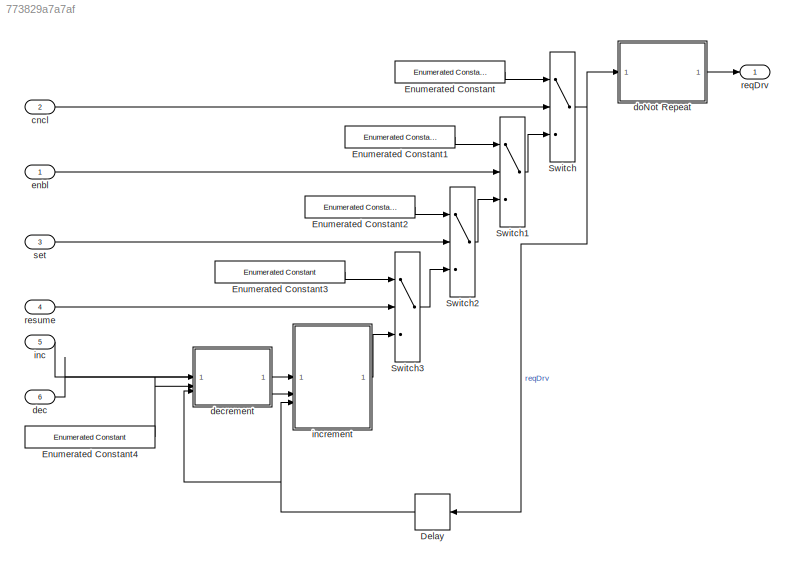
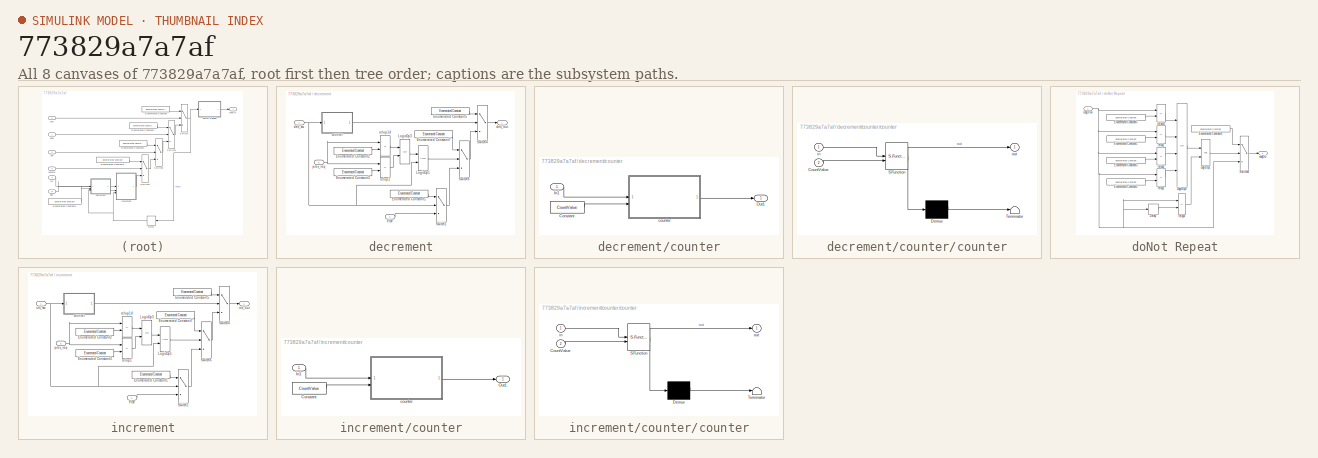
[diagram: thumbnail index - all 8 canvases of the model, root first then tree order]
MODEL slx_773829a7a7af
KIND model
CONFIG AbsTol = auto
CONFIG EnableMultiTasking = off
CONFIG FixedStep = 0.01
CONFIG MaxStep = auto
CONFIG MinStep = auto
CONFIG RelTol = 1e-3
CONFIG SampleTimeConstraint = Unconstrained
CONFIG SolverName = FixedStepDiscrete
CONFIG StartTime = 0.0
CONFIG StopTime = 10.0
BLOCK [Delay] Delay
  AttributesFormatString = IC: %<InitialCondition>
  DelayLength = 1
  InitialCondition = reqMode.NoRequest
  InputPortMap = u0
BLOCK [Reference] Enumerated Constant  REF=simulink/Sources/Enumerated
Constant
  SourceBlock = simulink/Sources/Enumerated\nConstant
  SourceType = Enumerated Constant
BLOCK [Reference] Enumerated Constant1  REF=simulink/Sources/Enumerated
Constant
  SourceBlock = simulink/Sources/Enumerated\nConstant
  SourceType = Enumerated Constant
BLOCK [Reference] Enumerated Constant2  REF=simulink/Sources/Enumerated
Constant
  SourceBlock = simulink/Sources/Enumerated\nConstant
  SourceType = Enumerated Constant
BLOCK [Reference] Enumerated Constant3  REF=simulink/Sources/Enumerated
Constant
  SourceBlock = simulink/Sources/Enumerated\nConstant
  SourceType = Enumerated Constant
BLOCK [Reference] Enumerated Constant4  REF=simulink/Sources/Enumerated
Constant
  NameLocation = top
  SourceBlock = simulink/Sources/Enumerated\nConstant
  SourceType = Enumerated Constant
BLOCK [Switch] Switch
  Criteria = u2 ~= 0
  InputSameDT = off
  SaturateOnIntegerOverflow = off
BLOCK [Switch] Switch1
  Criteria = u2 ~= 0
  InputSameDT = off
  SaturateOnIntegerOverflow = off
BLOCK [Switch] Switch2
  Criteria = u2 ~= 0
  InputSameDT = off
  SaturateOnIntegerOverflow = off
BLOCK [Switch] Switch3
  Criteria = u2 ~= 0
  InputSameDT = off
  SaturateOnIntegerOverflow = off
BLOCK [Inport] cncl
  OutDataTypeStr = boolean
  Port = 2
  PortDimensions = 1
  SampleTime = [0.01,0]
  SamplingMode = Sample based
  SignalType = real
BLOCK [Inport] dec
  OutDataTypeStr = boolean
  Port = 6
  PortDimensions = 1
  SampleTime = [0.01,0]
  SamplingMode = Sample based
  SignalType = real
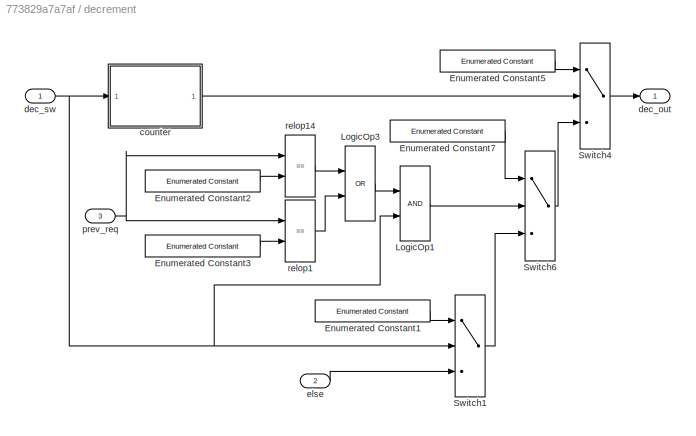
BLOCK [SubSystem] decrement
BLOCK [Reference] decrement/Enumerated Constant1  REF=simulink/Sources/Enumerated
Constant
  SourceBlock = simulink/Sources/Enumerated\nConstant
  SourceType = Enumerated Constant
BLOCK [Reference] decrement/Enumerated Constant2  REF=simulink/Sources/Enumerated
Constant
  SourceBlock = simulink/Sources/Enumerated\nConstant
  SourceType = Enumerated Constant
BLOCK [Reference] decrement/Enumerated Constant3  REF=simulink/Sources/Enumerated
Constant
  SourceBlock = simulink/Sources/Enumerated\nConstant
  SourceType = Enumerated Constant
BLOCK [Reference] decrement/Enumerated Constant5  REF=simulink/Sources/Enumerated
Constant
  SourceBlock = simulink/Sources/Enumerated\nConstant
  SourceType = Enumerated Constant
BLOCK [Reference] decrement/Enumerated Constant7  REF=simulink/Sources/Enumerated
Constant
  SourceBlock = simulink/Sources/Enumerated\nConstant
  SourceType = Enumerated Constant
BLOCK [Logic] decrement/LogicOp1
  AllPortsSameDT = off
  OutDataTypeStr = boolean
BLOCK [Logic] decrement/LogicOp3
  AllPortsSameDT = off
  Operator = OR
  OutDataTypeStr = boolean
BLOCK [Switch] decrement/Switch1
  Criteria = u2 ~= 0
  InputSameDT = off
  SaturateOnIntegerOverflow = off
BLOCK [Switch] decrement/Switch4
  Criteria = u2 ~= 0
  InputSameDT = off
  SaturateOnIntegerOverflow = off
BLOCK [Switch] decrement/Switch6
  Criteria = u2 ~= 0
  InputSameDT = off
  SaturateOnIntegerOverflow = off
BLOCK [SubSystem] decrement/counter
  DisableCoverage = on
BLOCK [Constant] decrement/counter/Constant
  OutDataTypeStr = OutDataTypeStr
  Value = CountValue
BLOCK [Inport] decrement/counter/In1
BLOCK [Outport] decrement/counter/Out1
  VectorParamsAs1DForOutWhenUnconnected = off
BLOCK [SubSystem] decrement/counter/counter
  ErrorFcn = Stateflow.Translate.translate
  PermitHierarchicalResolution = ExplicitOnly
  SFBlockType = MATLAB Function
  TreatAsAtomicUnit = on
BLOCK [Demux] decrement/counter/counter/ Demux 
  Outputs = 1
BLOCK [S-Function] decrement/counter/counter/ SFunction 
  EnableBusSupport = off
  FunctionName = sf_sfun
  PortCounts = [2 2]
  SFcnIsStateOwnerBlock = off
  SFunctionDeploymentMode = off
  Tag = Stateflow S-Function 1
BLOCK [Terminator] decrement/counter/counter/ Terminator 
BLOCK [Inport] decrement/counter/counter/CountValue
  Port = 2
BLOCK [Inport] decrement/counter/counter/in
BLOCK [Outport] decrement/counter/counter/out
  VectorParamsAs1DForOutWhenUnconnected = off
BLOCK [Outport] decrement/dec_out
  VectorParamsAs1DForOutWhenUnconnected = off
BLOCK [Inport] decrement/dec_sw
BLOCK [Inport] decrement/else
  Port = 2
BLOCK [Inport] decrement/prev_req
  Port = 3
BLOCK [RelationalOperator] decrement/relop1
  InputSameDT = off
  Operator = ==
  OutDataTypeStr = boolean
BLOCK [RelationalOperator] decrement/relop14
  InputSameDT = off
  Operator = ==
  OutDataTypeStr = boolean
BLOCK [SubSystem] doNot Repeat
BLOCK [Delay] doNot Repeat/Delay
  AttributesFormatString = Init = %<InitialCondition>
  DelayLength = 1
  InitialCondition = reqMode.NoRequest
  InputPortMap = u0
BLOCK [Reference] doNot Repeat/Enumerated Constant1  REF=simulink/Sources/Enumerated
Constant
  SourceBlock = simulink/Sources/Enumerated\nConstant
  SourceType = Enumerated Constant
BLOCK [Reference] doNot Repeat/Enumerated Constant2  REF=simulink/Sources/Enumerated
Constant
  SourceBlock = simulink/Sources/Enumerated\nConstant
  SourceType = Enumerated Constant
BLOCK [Reference] doNot Repeat/Enumerated Constant3  REF=simulink/Sources/Enumerated
Constant
  SourceBlock = simulink/Sources/Enumerated\nConstant
  SourceType = Enumerated Constant
BLOCK [Reference] doNot Repeat/Enumerated Constant4  REF=simulink/Sources/Enumerated
Constant
  NameLocation = top
  SourceBlock = simulink/Sources/Enumerated\nConstant
  SourceType = Enumerated Constant
BLOCK [Reference] doNot Repeat/Enumerated Constant5  REF=simulink/Sources/Enumerated
Constant
  SourceBlock = simulink/Sources/Enumerated\nConstant
  SourceType = Enumerated Constant
BLOCK [Logic] doNot Repeat/LogicOp1
  AllPortsSameDT = off
  OutDataTypeStr = boolean
BLOCK [Logic] doNot Repeat/LogicOp3
  AllPortsSameDT = off
  Inputs = 4
  Operator = OR
  OutDataTypeStr = boolean
BLOCK [Switch] doNot Repeat/Switch4
  Criteria = u2 ~= 0
  InputSameDT = off
  SaturateOnIntegerOverflow = off
BLOCK [RelationalOperator] doNot Repeat/relop1
  InputSameDT = off
  Operator = ==
  OutDataTypeStr = boolean
BLOCK [RelationalOperator] doNot Repeat/relop14
  InputSameDT = off
  Operator = ==
  OutDataTypeStr = boolean
BLOCK [RelationalOperator] doNot Repeat/relop2
  InputSameDT = off
  Operator = ==
  OutDataTypeStr = boolean
BLOCK [RelationalOperator] doNot Repeat/relop3
  InputSameDT = off
  Operator = ==
  OutDataTypeStr = boolean
BLOCK [RelationalOperator] doNot Repeat/relop4
  InputSameDT = off
  Operator = ==
  OutDataTypeStr = boolean
BLOCK [Inport] doNot Repeat/reqDrInv
BLOCK [Outport] doNot Repeat/reqDrv
  VectorParamsAs1DForOutWhenUnconnected = off
BLOCK [Inport] enbl
  OutDataTypeStr = boolean
  PortDimensions = 1
  SampleTime = [0.01,0]
  SamplingMode = Sample based
  SignalType = real
BLOCK [Inport] inc
  OutDataTypeStr = boolean
  Port = 5
  PortDimensions = 1
  SampleTime = [0.01,0]
  SamplingMode = Sample based
  SignalType = real
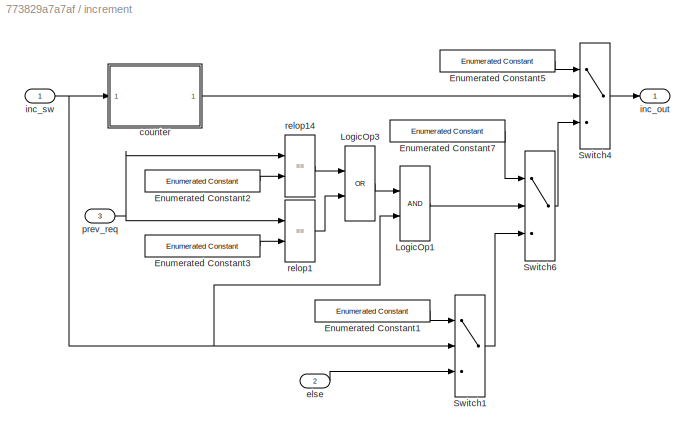
BLOCK [SubSystem] increment
BLOCK [Reference] increment/Enumerated Constant1  REF=simulink/Sources/Enumerated
Constant
  SourceBlock = simulink/Sources/Enumerated\nConstant
  SourceType = Enumerated Constant
BLOCK [Reference] increment/Enumerated Constant2  REF=simulink/Sources/Enumerated
Constant
  SourceBlock = simulink/Sources/Enumerated\nConstant
  SourceType = Enumerated Constant
BLOCK [Reference] increment/Enumerated Constant3  REF=simulink/Sources/Enumerated
Constant
  SourceBlock = simulink/Sources/Enumerated\nConstant
  SourceType = Enumerated Constant
BLOCK [Reference] increment/Enumerated Constant5  REF=simulink/Sources/Enumerated
Constant
  SourceBlock = simulink/Sources/Enumerated\nConstant
  SourceType = Enumerated Constant
BLOCK [Reference] increment/Enumerated Constant7  REF=simulink/Sources/Enumerated
Constant
  SourceBlock = simulink/Sources/Enumerated\nConstant
  SourceType = Enumerated Constant
BLOCK [Logic] increment/LogicOp1
  AllPortsSameDT = off
  OutDataTypeStr = boolean
BLOCK [Logic] increment/LogicOp3
  AllPortsSameDT = off
  Operator = OR
  OutDataTypeStr = boolean
BLOCK [Switch] increment/Switch1
  Criteria = u2 ~= 0
  InputSameDT = off
  SaturateOnIntegerOverflow = off
BLOCK [Switch] increment/Switch4
  Criteria = u2 ~= 0
  InputSameDT = off
  SaturateOnIntegerOverflow = off
BLOCK [Switch] increment/Switch6
  Criteria = u2 ~= 0
  InputSameDT = off
  SaturateOnIntegerOverflow = off
BLOCK [SubSystem] increment/counter
  DisableCoverage = on
BLOCK [Constant] increment/counter/Constant
  OutDataTypeStr = OutDataTypeStr
  Value = CountValue
BLOCK [Inport] increment/counter/In1
BLOCK [Outport] increment/counter/Out1
  VectorParamsAs1DForOutWhenUnconnected = off
BLOCK [SubSystem] increment/counter/counter
  ErrorFcn = Stateflow.Translate.translate
  PermitHierarchicalResolution = ExplicitOnly
  SFBlockType = MATLAB Function
  TreatAsAtomicUnit = on
BLOCK [Demux] increment/counter/counter/ Demux 
  Outputs = 1
BLOCK [S-Function] increment/counter/counter/ SFunction 
  EnableBusSupport = off
  FunctionName = sf_sfun
  PortCounts = [2 2]
  SFcnIsStateOwnerBlock = off
  SFunctionDeploymentMode = off
  Tag = Stateflow S-Function 2
BLOCK [Terminator] increment/counter/counter/ Terminator 
BLOCK [Inport] increment/counter/counter/CountValue
  Port = 2
BLOCK [Inport] increment/counter/counter/in
BLOCK [Outport] increment/counter/counter/out
  VectorParamsAs1DForOutWhenUnconnected = off
BLOCK [Inport] increment/else
  Port = 2
BLOCK [Outport] increment/inc_out
  VectorParamsAs1DForOutWhenUnconnected = off
BLOCK [Inport] increment/inc_sw
BLOCK [Inport] increment/prev_req
  Port = 3
BLOCK [RelationalOperator] increment/relop1
  InputSameDT = off
  Operator = ==
  OutDataTypeStr = boolean
BLOCK [RelationalOperator] increment/relop14
  InputSameDT = off
  Operator = ==
  OutDataTypeStr = boolean
BLOCK [Outport] reqDrv
  OutDataTypeStr = Enum: reqMode
  PortDimensions = 1
  SampleTime = [0.01,0]
  SamplingMode = Sample based
  SignalType = real
  VectorParamsAs1DForOutWhenUnconnected = off
BLOCK [Inport] resume
  OutDataTypeStr = boolean
  Port = 4
  PortDimensions = 1
  SampleTime = [0.01,0]
  SamplingMode = Sample based
  SignalType = real
BLOCK [Inport] set
  OutDataTypeStr = boolean
  Port = 3
  PortDimensions = 1
  SampleTime = [0.01,0]
  SamplingMode = Sample based
  SignalType = real
NET Delay:1 -> decrement:3, increment:3
LINE Enumerated Constant1:1 -> Switch1:1
LINE Enumerated Constant2:1 -> Switch2:1
LINE Enumerated Constant3:1 -> Switch3:1
LINE Enumerated Constant4:1 -> decrement:2
LINE Enumerated Constant:1 -> Switch:1
LINE Switch1:1 -> Switch:3
LINE Switch2:1 -> Switch1:3
LINE Switch3:1 -> Switch2:3
NET Switch:1 -> Delay:1, doNot Repeat:1
LINE cncl:1 -> Switch:2
LINE dec:1 -> decrement:1
LINE decrement/Enumerated Constant1:1 -> decrement/Switch1:1
LINE decrement/Enumerated Constant2:1 -> decrement/relop14:2
LINE decrement/Enumerated Constant3:1 -> decrement/relop1:2
LINE decrement/Enumerated Constant5:1 -> decrement/Switch4:1
LINE decrement/Enumerated Constant7:1 -> decrement/Switch6:1
LINE decrement/LogicOp1:1 -> decrement/Switch6:2
LINE decrement/LogicOp3:1 -> decrement/LogicOp1:1
LINE decrement/Switch1:1 -> decrement/Switch6:3
LINE decrement/Switch4:1 -> decrement/dec_out:1
LINE decrement/Switch6:1 -> decrement/Switch4:3
LINE decrement/counter/Constant:1 -> decrement/counter/counter:2
LINE decrement/counter/In1:1 -> decrement/counter/counter:1
LINE decrement/counter/counter:1 -> decrement/counter/Out1:1
LINE decrement/counter:1 -> decrement/Switch4:2
NET decrement/dec_sw:1 -> decrement/LogicOp1:2, decrement/Switch1:2, decrement/counter:1
LINE decrement/else:1 -> decrement/Switch1:3
NET decrement/prev_req:1 -> decrement/relop14:1, decrement/relop1:1
LINE decrement/relop14:1 -> decrement/LogicOp3:1
LINE decrement/relop1:1 -> decrement/LogicOp3:2
LINE decrement:1 -> increment:2
LINE doNot Repeat/Delay:1 -> doNot Repeat/relop4:2
LINE doNot Repeat/Enumerated Constant1:1 -> doNot Repeat/relop1:2
LINE doNot Repeat/Enumerated Constant2:1 -> doNot Repeat/relop2:2
LINE doNot Repeat/Enumerated Constant3:1 -> doNot Repeat/relop3:2
LINE doNot Repeat/Enumerated Constant4:1 -> doNot Repeat/Switch4:1
LINE doNot Repeat/Enumerated Constant5:1 -> doNot Repeat/relop14:2
LINE doNot Repeat/LogicOp1:1 -> doNot Repeat/Switch4:2
LINE doNot Repeat/LogicOp3:1 -> doNot Repeat/LogicOp1:1
LINE doNot Repeat/Switch4:1 -> doNot Repeat/reqDrv:1
LINE doNot Repeat/relop14:1 -> doNot Repeat/LogicOp3:1
LINE doNot Repeat/relop1:1 -> doNot Repeat/LogicOp3:2
LINE doNot Repeat/relop2:1 -> doNot Repeat/LogicOp3:4
LINE doNot Repeat/relop3:1 -> doNot Repeat/LogicOp3:3
LINE doNot Repeat/relop4:1 -> doNot Repeat/LogicOp1:2
NET doNot Repeat/reqDrInv:1 -> doNot Repeat/Delay:1, doNot Repeat/Switch4:3, doNot Repeat/relop14:1, doNot Repeat/relop1:1, doNot Repeat/relop2:1, doNot Repeat/relop3:1, doNot Repeat/relop4:1
LINE doNot Repeat:1 -> reqDrv:1
LINE enbl:1 -> Switch1:2
LINE inc:1 -> increment:1
LINE increment/Enumerated Constant1:1 -> increment/Switch1:1
LINE increment/Enumerated Constant2:1 -> increment/relop14:2
LINE increment/Enumerated Constant3:1 -> increment/relop1:2
LINE increment/Enumerated Constant5:1 -> increment/Switch4:1
LINE increment/Enumerated Constant7:1 -> increment/Switch6:1
LINE increment/LogicOp1:1 -> increment/Switch6:2
LINE increment/LogicOp3:1 -> increment/LogicOp1:1
LINE increment/Switch1:1 -> increment/Switch6:3
LINE increment/Switch4:1 -> increment/inc_out:1
LINE increment/Switch6:1 -> increment/Switch4:3
LINE increment/counter/Constant:1 -> increment/counter/counter:2
LINE increment/counter/In1:1 -> increment/counter/counter:1
LINE increment/counter/counter:1 -> increment/counter/Out1:1
LINE increment/counter:1 -> increment/Switch4:2
LINE increment/else:1 -> increment/Switch1:3
NET increment/inc_sw:1 -> increment/LogicOp1:2, increment/Switch1:2, increment/counter:1
NET increment/prev_req:1 -> increment/relop14:1, increment/relop1:1
LINE increment/relop14:1 -> increment/LogicOp3:1
LINE increment/relop1:1 -> increment/LogicOp3:2
LINE increment:1 -> Switch3:3
LINE resume:1 -> Switch3:2
LINE set:1 -> Switch2:2
note: NET lines group one-source signal fan-out (src -> all destinations, sorted); 1:1 wires keep LINE
CHART increment/counter/counter states=1 transitions=1
  STATE_LABEL 'eML_blk_kernel()'
  STATE_LABEL "SCRIPT:\nfunction out = counter(in,CountValue)\n%#codegen\n\npersistent cnt;\n\n% initialize\nif isempty(cnt)\n    cnt = cast(0,'like',CountValue);\nend\n\n% if enabled\nif in\n    % Output true if CountValue is reached\n    if cnt >= CountValue\n        out = true;\n    else\n        % Continue counting up and output false\n        cnt = cnt + cast(1,'like',CountValue);\n        out = false;\n    end\nelse\n    % if d...<+91ch>"
CHART decrement/counter/counter states=1 transitions=1
  STATE_LABEL 'eML_blk_kernel()'
  STATE_LABEL "SCRIPT:\nfunction out = counter(in,CountValue)\n%#codegen\n\npersistent cnt;\n\n% initialize\nif isempty(cnt)\n    cnt = cast(0,'like',CountValue);\nend\n\n% if enabled\nif in\n    % Output true if CountValue is reached\n    if cnt >= CountValue\n        out = true;\n    else\n        % Continue counting and output false        \n        cnt = cnt + cast(1,'like',CountValue);\n        out = false;\n    end\nelse\n    %...<+96ch>"
CHART  states=0 transitions=0
CHART  states=0 transitions=0
